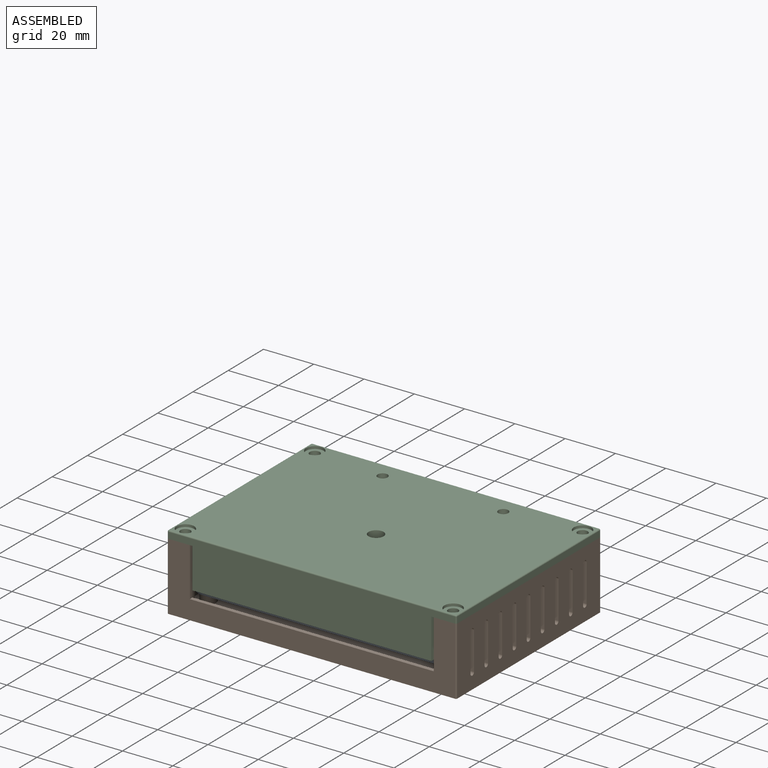
[diagram: assembled view]
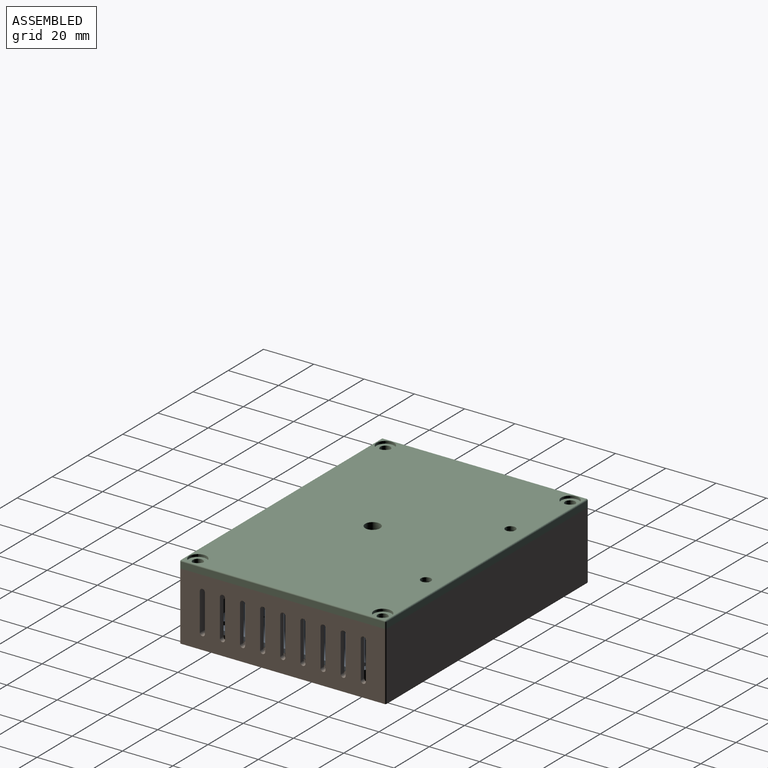
[diagram: assembled view, second angle]
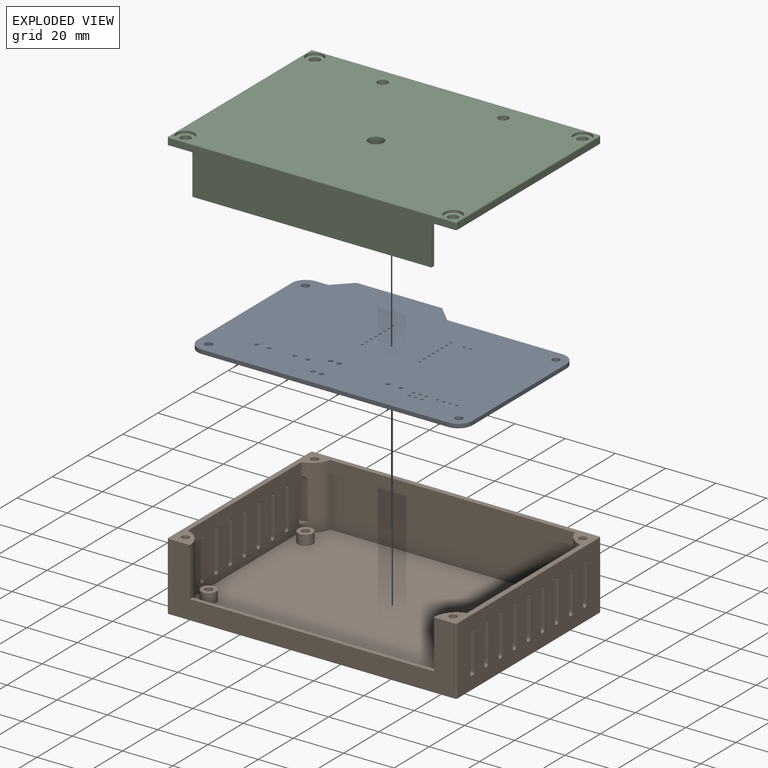
[diagram: exploded view]
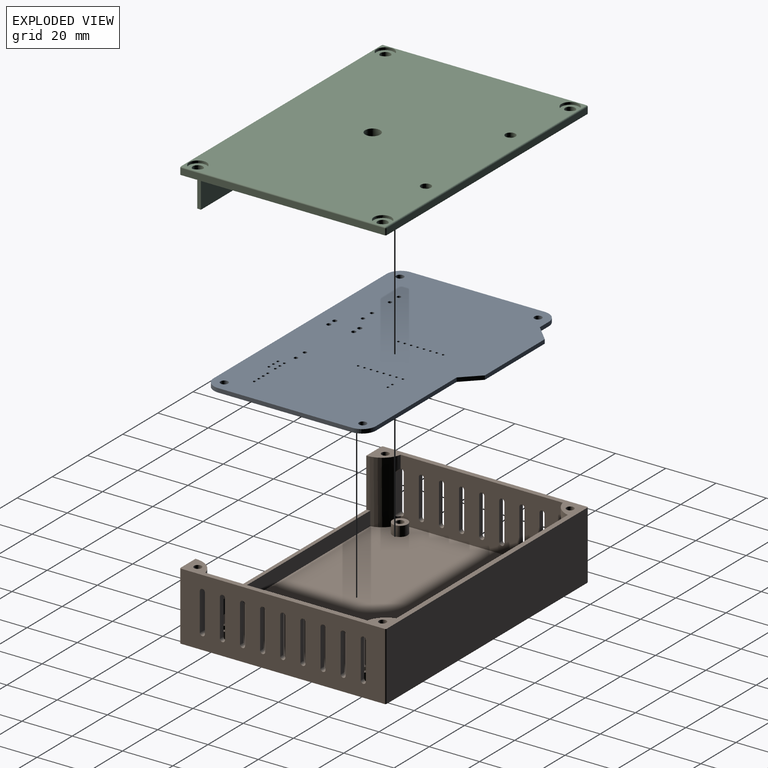
[diagram: exploded view, second angle]
ASSEMBLY  parts=3 mates=2
PART A: 56 faces, bbox 71.1x109.2x1.6 mm
  f0: plane 53.34x1.6mm, normal (0,-1,0), area 85.3mm2, adj f1,f2,f54,f55
  f1: cylinder r=5.59mm len=5.59mm, axis (0,0,1), area 14mm2, adj f0,f3,f54,f55
  f2: cylinder r=5.59mm len=5.59mm, axis (0,0,1), area 14mm2, adj f0,f4,f54,f55
  f3: plane 45.72x1.6mm, normal (1,0,0), area 73.2mm2, adj f1,f5,f54,f55
  f4: plane 98.04x1.6mm, normal (-1,0,0), area 156.9mm2, adj f2,f6,f54,f55
  f5: plane 6.6x6.6mm, normal (0.71,-0.71,0), area 14.9mm2, adj f3,f7,f54,f55
  f6: cylinder r=5.59mm len=5.59mm, axis (0,0,1), area 14mm2, adj f4,f8,f54,f55
  f7: plane 34.04x1.6mm, normal (1,0,0), area 54.5mm2, adj f5,f9,f54,f55
  f8: plane 53.34x1.6mm, normal (0,1,0), area 85.3mm2, adj f6,f10,f54,f55
  f9: plane 6.6x6.6mm, normal (0.71,0.71,0), area 14.9mm2, adj f7,f11,f54,f55
  f10: cylinder r=5.59mm len=5.59mm, axis (0,0,1), area 14mm2, adj f8,f11,f54,f55
  f11: plane 5.08x1.6mm, normal (1,0,0), area 8.1mm2, adj f9,f10,f54,f55
  f12: cylinder r=0.51mm len=1.6mm, axis (0,0,1), area 5.1mm2, adj f54,f55
  f13: cylinder r=0.51mm len=1.6mm, axis (0,0,1), area 5.1mm2, adj f54,f55
  f14: cylinder r=0.51mm len=1.6mm, axis (0,0,1), area 5.1mm2, adj f54,f55
  f15: cylinder r=0.51mm len=1.6mm, axis (0,0,1), area 5.1mm2, adj f54,f55
  f16: cylinder r=0.51mm len=1.6mm, axis (0,0,1), area 5.1mm2, adj f54,f55
  f17: cylinder r=0.51mm len=1.6mm, axis (0,0,1), area 5.1mm2, adj f54,f55
  f18: cylinder r=0.51mm len=1.6mm, axis (0,0,1), area 5.1mm2, adj f54,f55
  f19: cylinder r=0.51mm len=1.6mm, axis (0,0,1), area 5.1mm2, adj f54,f55
  f20: cylinder r=0.51mm len=1.6mm, axis (0,0,1), area 5.1mm2, adj f54,f55
  f21: cylinder r=0.51mm len=1.6mm, axis (0,0,1), area 5.1mm2, adj f54,f55
  f22: cylinder r=0.51mm len=1.6mm, axis (0,0,1), area 5.1mm2, adj f54,f55
  f23: cylinder r=0.51mm len=1.6mm, axis (0,0,1), area 5.1mm2, adj f54,f55
  f24: cylinder r=0.51mm len=1.6mm, axis (0,0,1), area 5.1mm2, adj f54,f55
  f25: cylinder r=0.51mm len=1.6mm, axis (0,0,1), area 5.1mm2, adj f54,f55
  f26: cylinder r=0.51mm len=1.6mm, axis (0,0,1), area 5.1mm2, adj f54,f55
  f27: cylinder r=0.51mm len=1.6mm, axis (0,0,1), area 5.1mm2, adj f54,f55
  f28: cylinder r=1.5mm len=3mm, axis (0,0,1), area 15.1mm2, adj f54,f55
  f29: cylinder r=0.5mm len=1.6mm, axis (0,0,1), area 5mm2, adj f54,f55
  f30: cylinder r=0.5mm len=1.6mm, axis (0,0,1), area 5mm2, adj f54,f55
  f31: cylinder r=1.5mm len=3mm, axis (0,0,1), area 15.1mm2, adj f54,f55
  f32: cylinder r=0.89mm len=1.78mm, axis (0,0,1), area 8.9mm2, adj f54,f55
  f33: cylinder r=0.89mm len=1.78mm, axis (0,0,1), area 8.9mm2, adj f54,f55
  f34: cylinder r=0.55mm len=1.6mm, axis (0,0,1), area 5.5mm2, adj f54,f55
  f35: cylinder r=0.55mm len=1.6mm, axis (0,0,1), area 5.5mm2, adj f54,f55
  f36: cylinder r=0.55mm len=1.6mm, axis (0,0,1), area 5.5mm2, adj f54,f55
  f37: cylinder r=0.55mm len=1.6mm, axis (0,0,1), area 5.5mm2, adj f54,f55
  f38: cylinder r=0.55mm len=1.6mm, axis (0,0,1), area 5.5mm2, adj f54,f55
  f39: cylinder r=0.55mm len=1.6mm, axis (0,0,1), area 5.5mm2, adj f54,f55
  f40: cylinder r=0.55mm len=1.6mm, axis (0,0,1), area 5.5mm2, adj f54,f55
  f41: cylinder r=0.55mm len=1.6mm, axis (0,0,1), area 5.5mm2, adj f54,f55
  f42: cylinder r=0.55mm len=1.6mm, axis (0,0,1), area 5.5mm2, adj f54,f55
  f43: cylinder r=0.55mm len=1.6mm, axis (0,0,1), area 5.5mm2, adj f54,f55
  f44: cylinder r=0.76mm len=1.6mm, axis (0,0,1), area 7.6mm2, adj f54,f55
  f45: cylinder r=0.76mm len=1.6mm, axis (0,0,1), area 7.6mm2, adj f54,f55
  f46: cylinder r=0.89mm len=1.78mm, axis (0,0,1), area 8.9mm2, adj f54,f55
  f47: cylinder r=0.89mm len=1.78mm, axis (0,0,1), area 8.9mm2, adj f54,f55
  f48: cylinder r=1.5mm len=3mm, axis (0,0,1), area 15.1mm2, adj f54,f55
  f49: cylinder r=0.76mm len=1.6mm, axis (0,0,1), area 7.6mm2, adj f54,f55
  f50: cylinder r=0.76mm len=1.6mm, axis (0,0,1), area 7.6mm2, adj f54,f55
  f51: cylinder r=1.5mm len=3mm, axis (0,0,1), area 15.1mm2, adj f54,f55
  f52: cylinder r=0.76mm len=1.6mm, axis (0,0,1), area 7.6mm2, adj f54,f55
  f53: cylinder r=0.76mm len=1.6mm, axis (0,0,1), area 7.6mm2, adj f54,f55
  f54: plane 109.22x71.12mm, normal (0,0,1), area 7214.9mm2, adj f0,f1,f2,f3,f4,f5,f6,f7
  f55: plane 109.22x71.12mm, normal (0,0,-1), area 7214.9mm2, adj f0,f1,f2,f3,f4,f5,f6,f7
PART B: 116 faces, bbox 115x82x27 mm
  f0: plane 111x78.5mm, normal (0,0,1), area 8465.9mm2, adj f1,f3,f4,f5,f10,f12,f14,f16
  f1: cylinder r=9mm len=25mm, axis (0,0,-1), area 257.1mm2, adj f0,f3,f6,f29,f91,f92,f93,f110
  f2: plane 81x27mm, normal (1,0,0), area 1888.7mm2, adj f9,f29,f74,f75,f76,f77,f78,f79
  f3: plane 64.45x25mm, normal (-1,0,0), area 1338.5mm2, adj f0,f1,f28,f29,f74,f75,f76,f77
  f4: cylinder r=9mm len=25mm, axis (0,0,-1), area 257.1mm2, adj f0,f6,f26,f29,f54,f55,f56,f110
  f5: cylinder r=9mm len=25mm, axis (0,0,-1), area 215.1mm2, adj f0,f26,f27,f29,f70,f71,f72
  f6: plane 114x27mm, normal (0,-1,0), area 1196.2mm2, adj f1,f4,f9,f29,f111,f112,f115
  f7: plane 114x27mm, normal (0,1,0), area 3078mm2, adj f9,f29,f113,f114
  f8: plane 81x27mm, normal (-1,0,0), area 1888.7mm2, adj f9,f29,f38,f39,f40,f41,f42,f43
  f9: plane 115x82mm, normal (0,0,-1), area 9429.8mm2, adj f2,f6,f7,f8,f112,f113,f114,f115
  f10: cylinder r=3mm len=6mm, axis (0,0,-1), area 75.4mm2, adj f0,f11
  f11: plane 6x6mm, normal (0,0,1), area 21.2mm2, adj f10,f24
  f12: cylinder r=3mm len=6mm, axis (0,0,-1), area 75.4mm2, adj f0,f13
  f13: plane 6x6mm, normal (0,0,1), area 21.2mm2, adj f12,f22
  f14: cylinder r=3mm len=6mm, axis (0,0,-1), area 75.4mm2, adj f0,f15
  f15: plane 6x6mm, normal (0,0,1), area 21.2mm2, adj f14,f20
  f16: cylinder r=3mm len=6mm, axis (0,0,-1), area 75.4mm2, adj f0,f17
  f17: plane 6x6mm, normal (0,0,1), area 21.2mm2, adj f16,f18
  f18: cylinder r=1.5mm len=4mm, axis (0,0,1), area 37.7mm2, adj f17,f19
  f19: plane 3x3mm, normal (0,0,1), area 7.1mm2, adj f18
  f20: cylinder r=1.5mm len=4mm, axis (0,0,1), area 37.7mm2, adj f15,f21
  f21: plane 3x3mm, normal (0,0,1), area 7.1mm2, adj f20
  f22: cylinder r=1.5mm len=4mm, axis (0,0,1), area 37.7mm2, adj f13,f23
  f23: plane 3x3mm, normal (0,0,1), area 7.1mm2, adj f22
  f24: cylinder r=1.5mm len=4mm, axis (0,0,1), area 37.7mm2, adj f11,f25
  f25: plane 3x3mm, normal (0,0,1), area 7.1mm2, adj f24
  f26: plane 64.45x25mm, normal (1,0,0), area 1338.5mm2, adj f0,f4,f5,f29,f38,f39,f40,f41
  f27: plane 97.45x25mm, normal (0,-1,0), area 2436.3mm2, adj f0,f5,f28,f29
  f28: cylinder r=9mm len=25mm, axis (0,0,-1), area 215.1mm2, adj f0,f3,f27,f29,f107,f108,f109
  f29: plane 115x82mm, normal (0,0,1), area 676.9mm2, adj f1,f2,f3,f4,f5,f6,f7,f8
  f30: cylinder r=1.5mm len=10mm, axis (0,0,1), area 94.2mm2, adj f29,f31
  f31: plane 3x3mm, normal (0,0,1), area 7.1mm2, adj f30
  f32: cylinder r=1.5mm len=10mm, axis (0,0,1), area 94.2mm2, adj f29,f33
  f33: plane 3x3mm, normal (0,0,1), area 7.1mm2, adj f32
  f34: cylinder r=1.5mm len=10mm, axis (0,0,1), area 94.2mm2, adj f29,f35
  f35: plane 3x3mm, normal (0,0,1), area 7.1mm2, adj f34
  f36: cylinder r=1.5mm len=10mm, axis (0,0,1), area 94.2mm2, adj f29,f37
  f37: plane 3x3mm, normal (0,0,1), area 7.1mm2, adj f36
  f38: plane 15x2mm, normal (0,1,0), area 30mm2, adj f8,f26,f39,f41
  f39: cylinder r=1mm len=2mm, axis (-1,0,0), area 6.3mm2, adj f8,f26,f38,f40
  f40: plane 15x2mm, normal (0,-1,0), area 30mm2, adj f8,f26,f39,f41
  f41: cylinder r=1mm len=2mm, axis (-1,0,0), area 6.3mm2, adj f8,f26,f38,f40
  f42: plane 15x2mm, normal (0,1,0), area 30mm2, adj f8,f26,f43,f45
  f43: cylinder r=1mm len=2mm, axis (-1,0,0), area 6.3mm2, adj f8,f26,f42,f44
  f44: plane 15x2mm, normal (0,-1,0), area 30mm2, adj f8,f26,f43,f45
  f45: cylinder r=1mm len=2mm, axis (-1,0,0), area 6.3mm2, adj f8,f26,f42,f44
  f46: plane 15x2mm, normal (0,1,0), area 30mm2, adj f8,f26,f47,f49
  f47: cylinder r=1mm len=2mm, axis (-1,0,0), area 6.3mm2, adj f8,f26,f46,f48
  f48: plane 15x2mm, normal (0,-1,0), area 30mm2, adj f8,f26,f47,f49
  f49: cylinder r=1mm len=2mm, axis (-1,0,0), area 6.3mm2, adj f8,f26,f46,f48
  f50: plane 15x2mm, normal (0,1,0), area 30mm2, adj f8,f26,f51,f53
  f51: cylinder r=1mm len=2mm, axis (-1,0,0), area 6.3mm2, adj f8,f26,f50,f52
  f52: plane 15x2mm, normal (0,-1,0), area 30mm2, adj f8,f26,f51,f53
  f53: cylinder r=1mm len=2mm, axis (-1,0,0), area 6.3mm2, adj f8,f26,f50,f52
  f54: plane 15x4.12mm, normal (0,1,0), area 61.8mm2, adj f4,f8,f55,f56
  f55: cylinder r=1mm len=4.12mm, axis (-1,0,0), area 8.3mm2, adj f4,f8,f26,f54,f57
  f56: cylinder r=1mm len=4.12mm, axis (-1,0,0), area 8.3mm2, adj f4,f8,f26,f54,f57
  f57: plane 15x2mm, normal (0,-1,0), area 30mm2, adj f8,f26,f55,f56
  f58: plane 15x2mm, normal (0,1,0), area 30mm2, adj f8,f26,f59,f61
  f59: cylinder r=1mm len=2mm, axis (-1,0,0), area 6.3mm2, adj f8,f26,f58,f60
  f60: plane 15x2mm, normal (0,-1,0), area 30mm2, adj f8,f26,f59,f61
  f61: cylinder r=1mm len=2mm, axis (-1,0,0), area 6.3mm2, adj f8,f26,f58,f60
  f62: plane 15x2mm, normal (0,1,0), area 30mm2, adj f8,f26,f63,f65
  f63: cylinder r=1mm len=2mm, axis (-1,0,0), area 6.3mm2, adj f8,f26,f62,f64
  f64: plane 15x2mm, normal (0,-1,0), area 30mm2, adj f8,f26,f63,f65
  f65: cylinder r=1mm len=2mm, axis (-1,0,0), area 6.3mm2, adj f8,f26,f62,f64
  f66: plane 15x2mm, normal (0,1,0), area 30mm2, adj f8,f26,f67,f69
  f67: cylinder r=1mm len=2mm, axis (-1,0,0), area 6.3mm2, adj f8,f26,f66,f68
  f68: plane 15x2mm, normal (0,-1,0), area 30mm2, adj f8,f26,f67,f69
  f69: cylinder r=1mm len=2mm, axis (-1,0,0), area 6.3mm2, adj f8,f26,f66,f68
  f70: cylinder r=1mm len=4.12mm, axis (-1,0,0), area 8.3mm2, adj f5,f8,f26,f71,f73
  f71: plane 15x4.12mm, normal (0,-1,0), area 61.8mm2, adj f5,f8,f70,f72
  f72: cylinder r=1mm len=4.12mm, axis (-1,0,0), area 8.3mm2, adj f5,f8,f26,f71,f73
  f73: plane 15x2mm, normal (0,1,0), area 30mm2, adj f8,f26,f70,f72
  f74: plane 15x2mm, normal (0,1,0), area 30mm2, adj f2,f3,f75,f77
  f75: cylinder r=1mm len=2mm, axis (1,0,0), area 6.3mm2, adj f2,f3,f74,f76
  f76: plane 15x2mm, normal (0,-1,0), area 30mm2, adj f2,f3,f75,f77
  f77: cylinder r=1mm len=2mm, axis (1,0,0), area 6.3mm2, adj f2,f3,f74,f76
  f78: plane 15x2mm, normal (0,1,0), area 30mm2, adj f2,f3,f79,f81
  f79: cylinder r=1mm len=2mm, axis (1,0,0), area 6.3mm2, adj f2,f3,f78,f80
  f80: plane 15x2mm, normal (0,-1,0), area 30mm2, adj f2,f3,f79,f81
  f81: cylinder r=1mm len=2mm, axis (1,0,0), area 6.3mm2, adj f2,f3,f78,f80
  f82: plane 15x2mm, normal (0,1,0), area 30mm2, adj f2,f3,f83,f85
  f83: cylinder r=1mm len=2mm, axis (1,0,0), area 6.3mm2, adj f2,f3,f82,f84
  f84: plane 15x2mm, normal (0,-1,0), area 30mm2, adj f2,f3,f83,f85
  f85: cylinder r=1mm len=2mm, axis (1,0,0), area 6.3mm2, adj f2,f3,f82,f84
  f86: plane 15x2mm, normal (0,1,0), area 30mm2, adj f2,f3,f87,f89
  f87: cylinder r=1mm len=2mm, axis (1,0,0), area 6.3mm2, adj f2,f3,f86,f88
  f88: plane 15x2mm, normal (0,-1,0), area 30mm2, adj f2,f3,f87,f89
  f89: cylinder r=1mm len=2mm, axis (1,0,0), area 6.3mm2, adj f2,f3,f86,f88
  f90: plane 15x2mm, normal (0,-1,0), area 30mm2, adj f2,f3,f92,f93
  f91: plane 15x4.12mm, normal (0,1,0), area 61.8mm2, adj f1,f2,f92,f93
  f92: cylinder r=1mm len=4.12mm, axis (1,0,0), area 8.3mm2, adj f1,f2,f3,f90,f91
  f93: cylinder r=1mm len=4.12mm, axis (1,0,0), area 8.3mm2, adj f1,f2,f3,f90,f91
  f94: plane 15x2mm, normal (0,1,0), area 30mm2, adj f2,f3,f95,f97
  f95: cylinder r=1mm len=2mm, axis (1,0,0), area 6.3mm2, adj f2,f3,f94,f96
  f96: plane 15x2mm, normal (0,-1,0), area 30mm2, adj f2,f3,f95,f97
  f97: cylinder r=1mm len=2mm, axis (1,0,0), area 6.3mm2, adj f2,f3,f94,f96
  f98: plane 15x2mm, normal (0,1,0), area 30mm2, adj f2,f3,f99,f101
  f99: cylinder r=1mm len=2mm, axis (1,0,0), area 6.3mm2, adj f2,f3,f98,f100
  f100: plane 15x2mm, normal (0,-1,0), area 30mm2, adj f2,f3,f99,f101
  f101: cylinder r=1mm len=2mm, axis (1,0,0), area 6.3mm2, adj f2,f3,f98,f100
  f102: plane 15x2mm, normal (0,1,0), area 30mm2, adj f2,f3,f103,f105
  f103: cylinder r=1mm len=2mm, axis (1,0,0), area 6.3mm2, adj f2,f3,f102,f104
  f104: plane 15x2mm, normal (0,-1,0), area 30mm2, adj f2,f3,f103,f105
  f105: cylinder r=1mm len=2mm, axis (1,0,0), area 6.3mm2, adj f2,f3,f102,f104
  f106: plane 15x2mm, normal (0,1,0), area 30mm2, adj f2,f3,f107,f109
  f107: cylinder r=1mm len=4.12mm, axis (1,0,0), area 8.3mm2, adj f2,f3,f28,f106,f108
  f108: plane 15x4.12mm, normal (0,-1,0), area 61.8mm2, adj f2,f28,f107,f109
  f109: cylinder r=1mm len=4.12mm, axis (1,0,0), area 8.3mm2, adj f2,f3,f28,f106,f108
  f110: plane 97.25x5.6mm, normal (0,1,0), area 544.6mm2, adj f0,f1,f4,f111
  f111: plane 97.25x1.5mm, normal (0,0,1), area 145.6mm2, adj f1,f4,f6,f110
  f112: cylinder r=0.5mm len=27mm, axis (0,0,1), area 21.2mm2, adj f2,f6,f9,f29
  f113: cylinder r=0.5mm len=27mm, axis (0,0,-1), area 21.2mm2, adj f2,f7,f9,f29
  f114: cylinder r=0.5mm len=27mm, axis (0,0,1), area 21.2mm2, adj f7,f8,f9,f29
  f115: cylinder r=0.5mm len=27mm, axis (0,0,-1), area 21.2mm2, adj f6,f8,f9,f29
PART C: 57 faces, bbox 115x82x19 mm
  f0: cylinder r=2mm len=4mm, axis (0,0,1), area 18.8mm2, adj f29,f38
  f1: cylinder r=2mm len=4mm, axis (0,0,1), area 18.8mm2, adj f29,f31
  f2: plane 7x7mm, normal (0,0,1), area 25.9mm2, adj f19,f28
  f3: plane 7x7mm, normal (0,0,1), area 25.9mm2, adj f20,f27
  f4: plane 7x7mm, normal (0,0,1), area 25.9mm2, adj f22,f26
  f5: plane 7x7mm, normal (0,0,1), area 25.9mm2, adj f21,f25
  f6: plane 109x77.5mm, normal (0,0,-1), area 8212mm2, adj f12,f13,f14,f15,f16,f17,f18,f23
  f7: plane 115x82mm, normal (0,0,-1), area 923.4mm2, adj f8,f9,f10,f11,f12,f13,f14,f15
  f8: plane 81x2.5mm, normal (1,0,0), area 202.5mm2, adj f7,f45,f50,f51
  f9: plane 114x2.5mm, normal (0,1,0), area 285mm2, adj f7,f50,f53,f56
  f10: plane 81x2.5mm, normal (-1,0,0), area 202.5mm2, adj f7,f47,f52,f53
  f11: plane 114x18.5mm, normal (0,-1,0), area 1805mm2, adj f7,f12,f18,f24,f45,f46,f47
  f12: cylinder r=10mm len=16mm, axis (0,0,1), area 35.2mm2, adj f6,f7,f11,f13,f23,f24
  f13: plane 62.92x1mm, normal (1,0,0), area 62.9mm2, adj f6,f7,f12,f14
  f14: cylinder r=10mm len=6.54mm, axis (0,0,1), area 9.6mm2, adj f6,f7,f13,f15
  f15: plane 95.92x1mm, normal (0,1,0), area 95.9mm2, adj f6,f7,f14,f16
  f16: cylinder r=10mm len=6.54mm, axis (0,0,1), area 9.6mm2, adj f6,f7,f15,f17
  f17: plane 62.92x1mm, normal (-1,0,0), area 62.9mm2, adj f6,f7,f16,f18
  f18: cylinder r=10mm len=16mm, axis (0,0,1), area 35.2mm2, adj f6,f7,f11,f17,f23,f24
  f19: cylinder r=2mm len=4mm, axis (0,0,1), area 25.1mm2, adj f2,f7
  f20: cylinder r=2mm len=4mm, axis (0,0,1), area 25.1mm2, adj f3,f7
  f21: cylinder r=2mm len=4mm, axis (0,0,1), area 25.1mm2, adj f5,f7
  f22: cylinder r=2mm len=4mm, axis (0,0,1), area 25.1mm2, adj f4,f7
  f23: plane 95.23x15mm, normal (0,1,0), area 1428.4mm2, adj f6,f12,f18,f24
  f24: plane 95.23x1.5mm, normal (0,0,-1), area 142.6mm2, adj f11,f12,f18,f23
  f25: cylinder r=3.5mm len=7mm, axis (0,0,-1), area 22mm2, adj f5,f29
  f26: cylinder r=3.5mm len=7mm, axis (0,0,-1), area 22mm2, adj f4,f29
  f27: cylinder r=3.5mm len=7mm, axis (0,0,-1), area 22mm2, adj f3,f29
  f28: cylinder r=3.5mm len=7mm, axis (0,0,-1), area 22mm2, adj f2,f29
  f29: plane 114x81mm, normal (0,0,1), area 9026.7mm2, adj f0,f1,f25,f26,f27,f28,f30,f46
  f30: cylinder r=3mm len=6mm, axis (0,0,1), area 75.4mm2, adj f6,f29
  f31: plane 7.51x6.5mm, normal (0,0,-1), area 24mm2, adj f1,f32,f33,f34,f35,f36,f37
  f32: plane 3.75x2.5mm, normal (0,-1,0), area 9.4mm2, adj f6,f31,f33,f37
  f33: plane 3.25x2.5mm, normal (-0.87,-0.5,0), area 9.4mm2, adj f6,f31,f32,f34
  f34: plane 3.25x2.5mm, normal (-0.87,0.5,0), area 9.4mm2, adj f6,f31,f33,f35
  f35: plane 3.75x2.5mm, normal (0,1,0), area 9.4mm2, adj f6,f31,f34,f36
  f36: plane 3.25x2.5mm, normal (0.87,0.5,0), area 9.4mm2, adj f6,f31,f35,f37
  f37: plane 3.25x2.5mm, normal (0.87,-0.5,0), area 9.4mm2, adj f6,f31,f32,f36
  f38: plane 7.51x6.5mm, normal (0,0,-1), area 24mm2, adj f0,f39,f40,f41,f42,f43,f44
  f39: plane 3.75x2.5mm, normal (0,-1,0), area 9.4mm2, adj f6,f38,f40,f44
  f40: plane 3.25x2.5mm, normal (-0.87,-0.5,0), area 9.4mm2, adj f6,f38,f39,f41
  f41: plane 3.25x2.5mm, normal (-0.87,0.5,0), area 9.4mm2, adj f6,f38,f40,f42
  f42: plane 3.75x2.5mm, normal (0,1,0), area 9.4mm2, adj f6,f38,f41,f43
  f43: plane 3.25x2.5mm, normal (0.87,0.5,0), area 9.4mm2, adj f6,f38,f42,f44
  f44: plane 3.25x2.5mm, normal (0.87,-0.5,0), area 9.4mm2, adj f6,f38,f39,f43
  f45: cylinder r=0.5mm len=2.5mm, axis (0,0,-1), area 2mm2, adj f7,f8,f11,f48
  f46: cylinder r=0.5mm len=114mm, axis (-1,0,0), area 89.5mm2, adj f11,f29,f48,f49
  f47: cylinder r=0.5mm len=2.5mm, axis (0,0,1), area 2mm2, adj f7,f10,f11,f49
  f48: sphere r=0.5mm, area 0.4mm2, adj f45,f46,f51
  f49: sphere r=0.5mm, area 0.4mm2, adj f46,f47,f52
  f50: cylinder r=0.5mm len=2.5mm, axis (0,0,-1), area 2mm2, adj f7,f8,f9,f54
  f51: cylinder r=0.5mm len=81mm, axis (0,-1,0), area 63.6mm2, adj f8,f29,f48,f54
  f52: cylinder r=0.5mm len=81mm, axis (0,1,0), area 63.6mm2, adj f10,f29,f49,f55
  f53: cylinder r=0.5mm len=2.5mm, axis (0,0,1), area 2mm2, adj f7,f9,f10,f55
  f54: sphere r=0.5mm, area 0.4mm2, adj f50,f51,f56
  f55: sphere r=0.5mm, area 0.4mm2, adj f52,f53,f56
  f56: cylinder r=0.5mm len=114mm, axis (1,0,0), area 89.5mm2, adj f9,f29,f54,f55
PLACE A rot(axis=(0,0,1),90deg) t=(-21.15,13.57,7.6)mm
PLACE B at identity
PLACE C t=(0,0,-1)mm
MATE fastened A.f48 <-> B.f12  axis (0,0,-1) through (-49.8,-28.5,6)mm
MATE fastened C.f19 <-> B.f30  axis (0,0,-1) through (-53.26,36.76,27)mm
